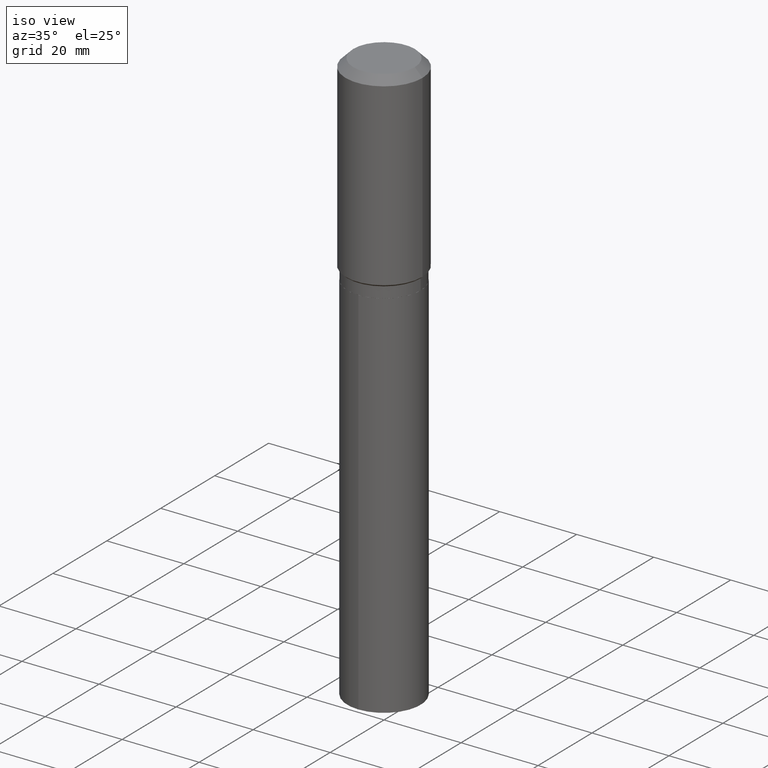
[diagram: clean part render]
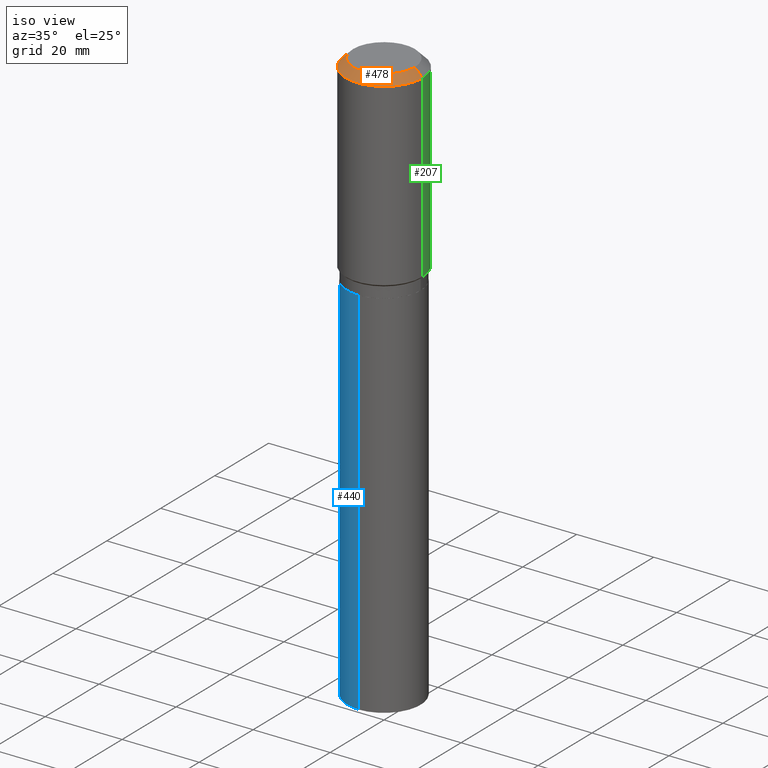
[diagram: same view with three faces highlighted in distinct colors, each labeled with its STEP entity id]
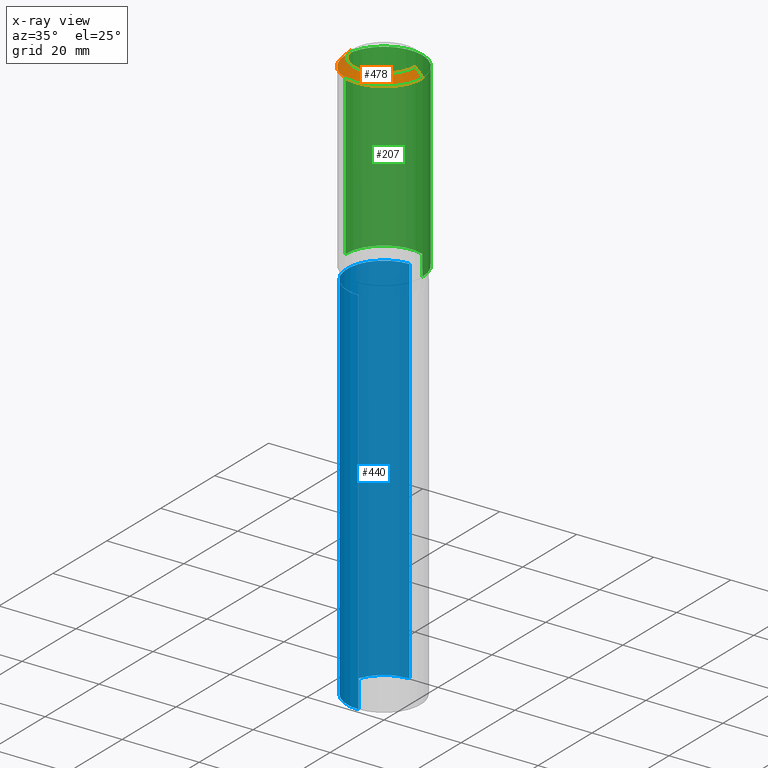
[diagram: x-ray of the same camera — body ghosted, the three highlighted faces saturated]
A machine part, iso view with three faces highlighted in distinct colors.
The next image is the same camera in x-ray (body ghosted, the three faces saturated) — at least one of them is partly hidden behind the body in this view.
Their STEP definitions:

[orange] entity #478 — the highlighted conical surface has half-angle 45 deg.
#27 = DIRECTION ( 'NONE',  ( -0.7071067811865453523, 2.468850131082234184E-15, -0.7071067811865496822 ) ) ;
#39 = VERTEX_POINT ( 'NONE', #453 ) ;
#45 = VERTEX_POINT ( 'NONE', #201 ) ;
#51 = CIRCLE ( 'NONE', #231, 0.3937000000000000499 ) ;
#64 = VECTOR ( 'NONE', #451, 39.37007874015748143 ) ;
#80 = DIRECTION ( 'NONE',  ( -2.445468806185136597E-29, 3.491481338843145583E-15, 1.000000000000000000 ) ) ;
#105 = CARTESIAN_POINT ( 'NONE',  ( -9.427742298522567634E-47, 1.346031739168368355E-32, 3.855188123715870730E-18 ) ) ;
#127 = EDGE_CURVE ( 'NONE', #39, #184, #51, .T. ) ;
#129 = CARTESIAN_POINT ( 'NONE',  ( 0.3937000000000000499, -3.024111646825594378E-15, -0.07874000000000049015 ) ) ;
#143 = DIRECTION ( 'NONE',  ( 1.000000000000000000, -6.982962677686265922E-15, 4.876223630392693006E-29 ) ) ;
#151 = CARTESIAN_POINT ( 'NONE',  ( 0.3937000000000000499, -2.975897302343163203E-15, -0.07874000000000049015 ) ) ;
#158 = EDGE_CURVE ( 'NONE', #45, #184, #194, .T. ) ;
#167 = FACE_OUTER_BOUND ( 'NONE', #237, .T. ) ;
#184 = VERTEX_POINT ( 'NONE', #129 ) ;
#194 = LINE ( 'NONE', #151, #64 ) ;
#200 = DIRECTION ( 'NONE',  ( -2.445468806185136597E-29, 3.491481338843145583E-15, 1.000000000000000000 ) ) ;
#201 = CARTESIAN_POINT ( 'NONE',  ( 0.3149600000000000177, -2.568339875860642378E-15, 3.855188123732540039E-18 ) ) ;
#218 = CARTESIAN_POINT ( 'NONE',  ( -0.3149600000000000177, 2.336813545274319235E-15, 3.855188123700009542E-18 ) ) ;
#221 = CARTESIAN_POINT ( 'NONE',  ( -0.3937000000000000499, 2.474273165584572449E-15, -0.07874000000000049015 ) ) ;
#231 = AXIS2_PLACEMENT_3D ( 'NONE', #323, #200, #368 ) ;
#237 = EDGE_LOOP ( 'NONE', ( #341, #255, #244, #286 ) ) ;
#244 = ORIENTED_EDGE ( 'NONE', *, *, #357, .T. ) ;
#255 = ORIENTED_EDGE ( 'NONE', *, *, #401, .F. ) ;
#273 = VECTOR ( 'NONE', #27, 39.37007874015748143 ) ;
#286 = ORIENTED_EDGE ( 'NONE', *, *, #127, .T. ) ;
#303 = LINE ( 'NONE', #221, #273 ) ;
#320 = CIRCLE ( 'NONE', #383, 0.3149600000000000177 ) ;
#323 = CARTESIAN_POINT ( 'NONE',  ( 1.925562137990188729E-30, -2.749192406205110629E-16, -0.07874000000000049015 ) ) ;
#328 = VERTEX_POINT ( 'NONE', #218 ) ;
#341 = ORIENTED_EDGE ( 'NONE', *, *, #158, .F. ) ;
#356 = AXIS2_PLACEMENT_3D ( 'NONE', #441, #375, #468 ) ;
#357 = EDGE_CURVE ( 'NONE', #328, #39, #303, .T. ) ;
#367 = CONICAL_SURFACE ( 'NONE', #356, 0.3937000000000000499, 0.7853981633974452814 ) ;
#368 = DIRECTION ( 'NONE',  ( 1.000000000000000000, -6.982962677686265922E-15, 0.000000000000000000 ) ) ;
#375 = DIRECTION ( 'NONE',  ( 2.445468806185136597E-29, -3.491481338843145583E-15, -1.000000000000000000 ) ) ;
#383 = AXIS2_PLACEMENT_3D ( 'NONE', #105, #80, #143 ) ;
#401 = EDGE_CURVE ( 'NONE', #328, #45, #320, .T. ) ;
#441 = CARTESIAN_POINT ( 'NONE',  ( 1.925562137990188729E-30, -2.749192406205110629E-16, -0.07874000000000049015 ) ) ;
#451 = DIRECTION ( 'NONE',  ( 0.7071067811865453523, -7.319954787623248157E-15, -0.7071067811865496822 ) ) ;
#453 = CARTESIAN_POINT ( 'NONE',  ( -0.3937000000000000499, -6.855902885022426635E-16, -0.07874000000000049015 ) ) ;
#468 = DIRECTION ( 'NONE',  ( -1.000000000000000000, 6.982962677686265922E-15, 0.000000000000000000 ) ) ;
#478 = ADVANCED_FACE ( 'NONE', ( #167 ), #367, .T. ) ;

[blue] entity #440 — the highlighted cylindrical surface (partial cylindrical patch) has radius 9.525 mm, axis along (-0, 0, 1).
#1 = AXIS2_PLACEMENT_3D ( 'NONE', #132, #178, #333 ) ;
#18 = DIRECTION ( 'NONE',  ( -2.445291597268373116E-29, 3.491735112098055951E-15, 1.000000000000000000 ) ) ;
#33 = DIRECTION ( 'NONE',  ( -6.982962677686265922E-15, -1.000000000000000000, 2.913971193241880372E-15 ) ) ;
#47 = DIRECTION ( 'NONE',  ( -2.445291597268373116E-29, 3.491735112098055951E-15, 1.000000000000000000 ) ) ;
#63 = EDGE_CURVE ( 'NONE', #324, #274, #268, .T. ) ;
#81 = DIRECTION ( 'NONE',  ( -2.445291597268373116E-29, 3.491735112098055951E-15, 1.000000000000000000 ) ) ;
#92 = EDGE_LOOP ( 'NONE', ( #485, #447, #392, #417 ) ) ;
#101 = CARTESIAN_POINT ( 'NONE',  ( -2.618611004132299924E-15, -0.3750000000000072164, -2.047599999999998754 ) ) ;
#110 = CARTESIAN_POINT ( 'NONE',  ( 2.664535259100520059E-15, 0.3749999999999928391, -2.047600000000001863 ) ) ;
#132 = CARTESIAN_POINT ( 'NONE',  ( 5.007341927544686818E-29, -7.149157189415226982E-15, -2.047600000000000531 ) ) ;
#139 = CIRCLE ( 'NONE', #426, 0.3750000000000000555 ) ;
#154 = AXIS2_PLACEMENT_3D ( 'NONE', #347, #18, #305 ) ;
#178 = DIRECTION ( 'NONE',  ( -2.445291597268373116E-29, 3.491735112098055951E-15, 1.000000000000000000 ) ) ;
#202 = EDGE_CURVE ( 'NONE', #477, #318, #332, .T. ) ;
#241 = EDGE_CURVE ( 'NONE', #274, #318, #365, .T. ) ;
#268 = LINE ( 'NONE', #459, #344 ) ;
#272 = CARTESIAN_POINT ( 'NONE',  ( -2.618611004132299924E-15, -0.3750000000000072164, -2.047599999999998754 ) ) ;
#274 = VERTEX_POINT ( 'NONE', #110 ) ;
#305 = DIRECTION ( 'NONE',  ( -6.982962677686265922E-15, -1.000000000000000000, 3.642463991552350169E-15 ) ) ;
#318 = VERTEX_POINT ( 'NONE', #101 ) ;
#324 = VERTEX_POINT ( 'NONE', #483 ) ;
#332 = LINE ( 'NONE', #272, #434 ) ;
#333 = DIRECTION ( 'NONE',  ( -6.982962677686265922E-15, -1.000000000000000000, 3.642463991552350169E-15 ) ) ;
#338 = EDGE_CURVE ( 'NONE', #324, #477, #139, .T. ) ;
#344 = VECTOR ( 'NONE', #81, 39.37007874015748143 ) ;
#347 = CARTESIAN_POINT ( 'NONE',  ( 5.007341927544686818E-29, -7.149157189415226982E-15, -2.047600000000000531 ) ) ;
#365 = CIRCLE ( 'NONE', #154, 0.3750000000000000555 ) ;
#381 = DIRECTION ( 'NONE',  ( -2.445291597268373116E-29, 3.491735112098055951E-15, 1.000000000000000000 ) ) ;
#392 = ORIENTED_EDGE ( 'NONE', *, *, #202, .T. ) ;
#417 = ORIENTED_EDGE ( 'NONE', *, *, #241, .F. ) ;
#426 = AXIS2_PLACEMENT_3D ( 'NONE', #480, #381, #33 ) ;
#434 = VECTOR ( 'NONE', #47, 39.37007874015748143 ) ;
#440 = ADVANCED_FACE ( 'NONE', ( #469 ), #473, .T. ) ;
#447 = ORIENTED_EDGE ( 'NONE', *, *, #338, .T. ) ;
#459 = CARTESIAN_POINT ( 'NONE',  ( 2.664535259100425395E-15, 0.3749999999999928391, -2.047600000000001863 ) ) ;
#469 = FACE_OUTER_BOUND ( 'NONE', #92, .T. ) ;
#470 = CARTESIAN_POINT ( 'NONE',  ( -2.618611004132207233E-15, -0.3750000000000206501, -5.876283571644396631 ) ) ;
#473 = CYLINDRICAL_SURFACE ( 'NONE', #1, 0.3750000000000000555 ) ;
#477 = VERTEX_POINT ( 'NONE', #470 ) ;
#480 = CARTESIAN_POINT ( 'NONE',  ( 1.436958969388619545E-28, -2.051790604963896407E-14, -5.876283571644398407 ) ) ;
#483 = CARTESIAN_POINT ( 'NONE',  ( 2.664535259100520059E-15, 0.3749999999999796829, -5.876283571644399295 ) ) ;
#485 = ORIENTED_EDGE ( 'NONE', *, *, #63, .F. ) ;

[green] entity #207 — the highlighted cylindrical surface (partial cylindrical patch) has radius 10 mm, axis along (-0, 0, 1).
#3 = CARTESIAN_POINT ( 'NONE',  ( 1.925562137990188729E-30, -2.749192406205110629E-16, -0.07874000000000049015 ) ) ;
#4 = VERTEX_POINT ( 'NONE', #54 ) ;
#20 = CIRCLE ( 'NONE', #126, 0.3937000000000000499 ) ;
#39 = VERTEX_POINT ( 'NONE', #453 ) ;
#54 = CARTESIAN_POINT ( 'NONE',  ( -0.3937000000000002164, -3.893668087071488360E-15, -1.916400000000000103 ) ) ;
#71 = VECTOR ( 'NONE', #474, 39.37007874015748143 ) ;
#74 = LINE ( 'NONE', #408, #102 ) ;
#82 = ORIENTED_EDGE ( 'NONE', *, *, #123, .F. ) ;
#102 = VECTOR ( 'NONE', #179, 39.37007874015748143 ) ;
#117 = CARTESIAN_POINT ( 'NONE',  ( 4.686496420173195799E-29, -6.691074837759004724E-15, -1.916400000000000103 ) ) ;
#121 = DIRECTION ( 'NONE',  ( 1.000000000000000000, -6.982962677686265133E-15, 0.000000000000000000 ) ) ;
#123 = EDGE_CURVE ( 'NONE', #184, #39, #20, .T. ) ;
#126 = AXIS2_PLACEMENT_3D ( 'NONE', #3, #358, #267 ) ;
#129 = CARTESIAN_POINT ( 'NONE',  ( 0.3937000000000000499, -3.024111646825594378E-15, -0.07874000000000049015 ) ) ;
#136 = LINE ( 'NONE', #252, #71 ) ;
#141 = ORIENTED_EDGE ( 'NONE', *, *, #294, .T. ) ;
#147 = EDGE_CURVE ( 'NONE', #192, #4, #280, .T. ) ;
#157 = DIRECTION ( 'NONE',  ( 1.000000000000000000, -6.982962677686266711E-15, 4.876176775795935793E-29 ) ) ;
#179 = DIRECTION ( 'NONE',  ( -2.445468806185136877E-29, 3.491481338843145188E-15, 1.000000000000000000 ) ) ;
#184 = VERTEX_POINT ( 'NONE', #129 ) ;
#188 = ORIENTED_EDGE ( 'NONE', *, *, #147, .T. ) ;
#192 = VERTEX_POINT ( 'NONE', #330 ) ;
#198 = CARTESIAN_POINT ( 'NONE',  ( 0.000000000000000000, 0.000000000000000000, 0.000000000000000000 ) ) ;
#207 = ADVANCED_FACE ( 'NONE', ( #319 ), #454, .T. ) ;
#229 = DIRECTION ( 'NONE',  ( -2.445468806185136597E-29, 3.491481338843145583E-15, 1.000000000000000000 ) ) ;
#247 = EDGE_CURVE ( 'NONE', #192, #184, #136, .T. ) ;
#252 = CARTESIAN_POINT ( 'NONE',  ( 0.3937000000000001054, -2.749192406205084005E-15, 1.919750796630860452E-29 ) ) ;
#267 = DIRECTION ( 'NONE',  ( 1.000000000000000000, -6.982962677686265922E-15, 0.000000000000000000 ) ) ;
#280 = CIRCLE ( 'NONE', #354, 0.3937000000000002164 ) ;
#294 = EDGE_CURVE ( 'NONE', #4, #39, #74, .T. ) ;
#316 = EDGE_LOOP ( 'NONE', ( #188, #141, #82, #394 ) ) ;
#319 = FACE_OUTER_BOUND ( 'NONE', #316, .T. ) ;
#330 = CARTESIAN_POINT ( 'NONE',  ( 0.3937000000000002164, -9.440267243964090308E-15, -1.916400000000000103 ) ) ;
#354 = AXIS2_PLACEMENT_3D ( 'NONE', #117, #229, #121 ) ;
#358 = DIRECTION ( 'NONE',  ( -2.445468806185136597E-29, 3.491481338843145583E-15, 1.000000000000000000 ) ) ;
#364 = DIRECTION ( 'NONE',  ( -2.445468806185136597E-29, 3.491481338843145583E-15, 1.000000000000000000 ) ) ;
#394 = ORIENTED_EDGE ( 'NONE', *, *, #247, .F. ) ;
#408 = CARTESIAN_POINT ( 'NONE',  ( -0.3937000000000001054, 2.797406750687515181E-15, -1.936584745033357016E-29 ) ) ;
#453 = CARTESIAN_POINT ( 'NONE',  ( -0.3937000000000000499, -6.855902885022426635E-16, -0.07874000000000049015 ) ) ;
#454 = CYLINDRICAL_SURFACE ( 'NONE', #489, 0.3937000000000001054 ) ;
#474 = DIRECTION ( 'NONE',  ( -2.445468806185136877E-29, 3.491481338843145188E-15, 1.000000000000000000 ) ) ;
#489 = AXIS2_PLACEMENT_3D ( 'NONE', #198, #364, #157 ) ;